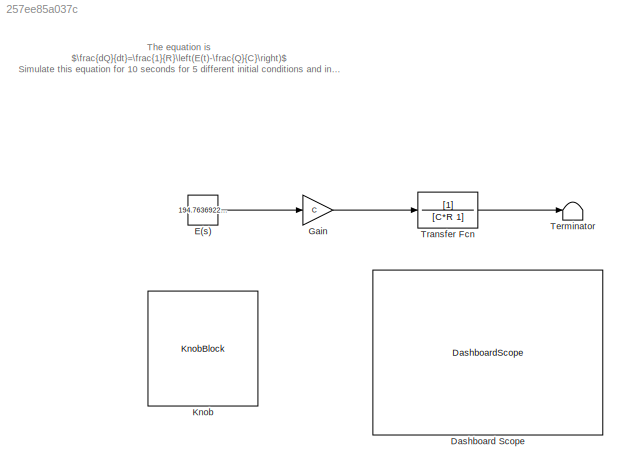
MODEL slx_257ee85a037c
KIND model
CONFIG AbsTol = auto
CONFIG EnableMultiTasking = off
CONFIG FixedStep = auto
CONFIG MaxStep = auto
CONFIG MinStep = auto
CONFIG RelTol = 1e-3
CONFIG SampleTimeConstraint = Unconstrained
CONFIG Solver = VariableStepAuto
CONFIG SolverName = VariableStepAuto
CONFIG StartTime = 0.0
CONFIG StopTime = inf
WORKSPACE source: mxarray member
WORKSPACE C = 0.005
WORKSPACE R = 10
BLOCK [DashboardScope] Dashboard Scope
BLOCK [Constant] E(s)
  Value = 194.7636922200521
BLOCK [Gain] Gain
  Gain = C
BLOCK [KnobBlock] Knob
  LabelPosition = Bottom
  ScaleMax = 200
BLOCK [Terminator] Terminator
BLOCK [TransferFcn] Transfer Fcn
  Denominator = [C*R 1]
ANNOTATION (root): The equation is $\frac{dQ}{dt}=\frac{1}{R}\left(E(t)-\frac{Q}{C}\right)$ Simulate this equation for 10 seconds for 5 different initial conditions and inputs E(t)
LINE E(s):1 -> Gain:1
LINE Gain:1 -> Transfer Fcn:1
LINE Transfer Fcn:1 -> Terminator:1
